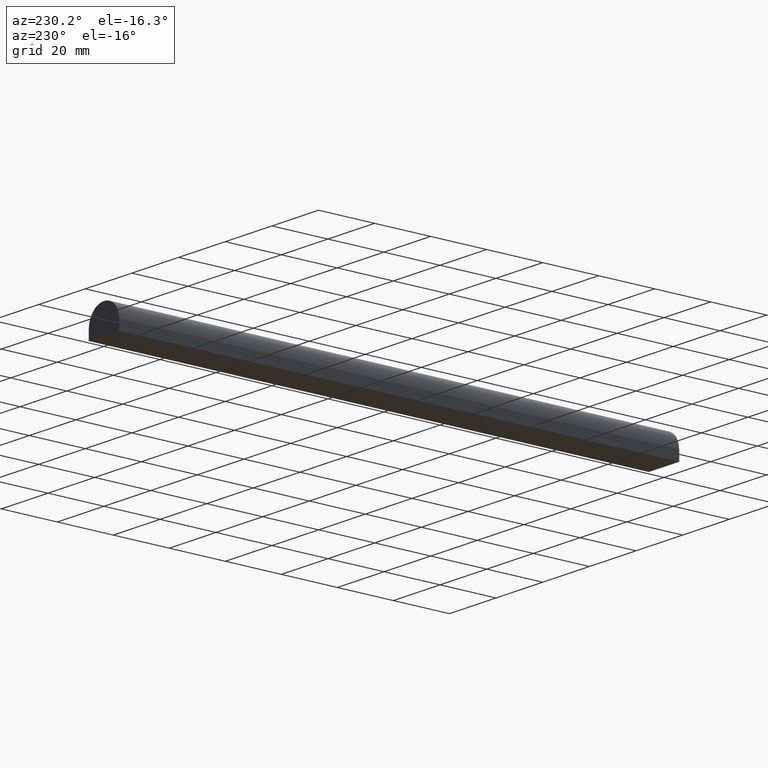
[diagram: clean part render]
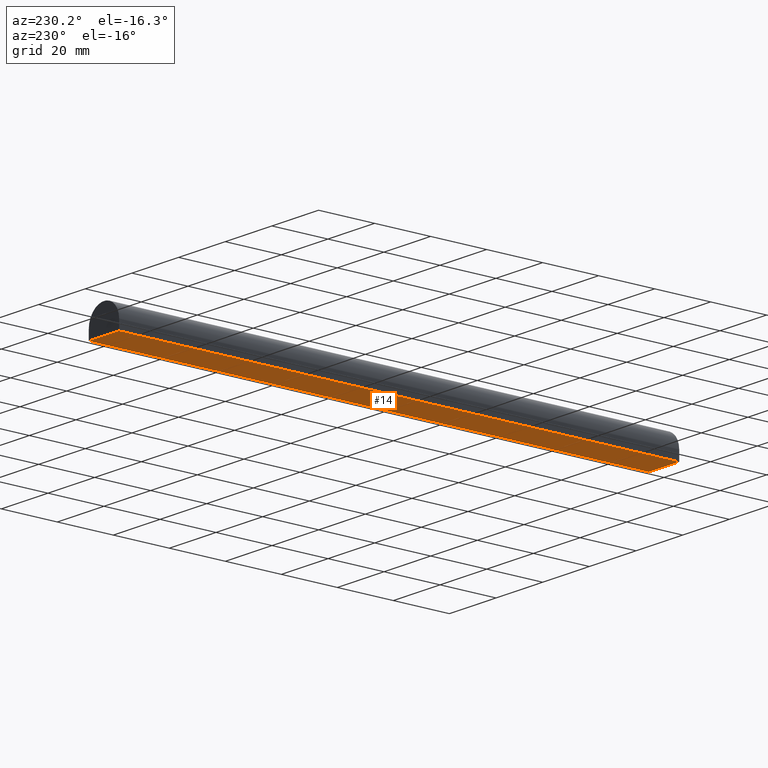
[diagram: same view with one face highlighted and labeled with its STEP entity id]
A machine part, auxiliary view. The second image highlights one B-rep face of the part: STEP entity #14.
In plain terms, the highlighted planar face has unit normal (0, 0, -1).
Its self-contained STEP definition (entity closure, byte-faithful):
#11 = VECTOR ( 'NONE', #16, 1000.000000000000000 ) ;
#14 = ADVANCED_FACE ( 'NONE', ( #109 ), #195, .T. ) ;
#16 = DIRECTION ( 'NONE',  ( 1.000000000000000000, -0.0000000000000000000, -0.0000000000000000000 ) ) ;
#18 = LINE ( 'NONE', #170, #143 ) ;
#33 = CARTESIAN_POINT ( 'NONE',  ( 6.500000000000000000, 200.0000000000000000, -5.000000000000000000 ) ) ;
#39 = EDGE_CURVE ( 'NONE', #129, #91, #90, .T. ) ;
#45 = CARTESIAN_POINT ( 'NONE',  ( -6.500000000000000000, 200.0000000000000000, -5.000000000000000000 ) ) ;
#48 = EDGE_CURVE ( 'NONE', #229, #180, #156, .T. ) ;
#59 = DIRECTION ( 'NONE',  ( 1.000000000000000000, -0.0000000000000000000, -0.0000000000000000000 ) ) ;
#83 = DIRECTION ( 'NONE',  ( 0.0000000000000000000, 0.0000000000000000000, -1.000000000000000000 ) ) ;
#84 = ORIENTED_EDGE ( 'NONE', *, *, #48, .T. ) ;
#86 = VECTOR ( 'NONE', #228, 1000.000000000000000 ) ;
#90 = LINE ( 'NONE', #96, #115 ) ;
#91 = VERTEX_POINT ( 'NONE', #192 ) ;
#96 = CARTESIAN_POINT ( 'NONE',  ( -6.500000000000000000, 1000.000000000000000, -5.000000000000000000 ) ) ;
#105 = CARTESIAN_POINT ( 'NONE',  ( 6.500000000000000000, 0.0000000000000000000, -5.000000000000000000 ) ) ;
#109 = FACE_OUTER_BOUND ( 'NONE', #124, .T. ) ;
#115 = VECTOR ( 'NONE', #191, 1000.000000000000000 ) ;
#116 = DIRECTION ( 'NONE',  ( -1.000000000000000000, 0.0000000000000000000, 0.0000000000000000000 ) ) ;
#117 = AXIS2_PLACEMENT_3D ( 'NONE', #179, #83, #116 ) ;
#122 = EDGE_CURVE ( 'NONE', #91, #180, #18, .T. ) ;
#124 = EDGE_LOOP ( 'NONE', ( #219, #188, #130, #84 ) ) ;
#129 = VERTEX_POINT ( 'NONE', #45 ) ;
#130 = ORIENTED_EDGE ( 'NONE', *, *, #161, .T. ) ;
#143 = VECTOR ( 'NONE', #59, 1000.000000000000000 ) ;
#156 = LINE ( 'NONE', #203, #86 ) ;
#161 = EDGE_CURVE ( 'NONE', #129, #229, #221, .T. ) ;
#170 = CARTESIAN_POINT ( 'NONE',  ( 0.0000000000000000000, 0.0000000000000000000, -5.000000000000000000 ) ) ;
#179 = CARTESIAN_POINT ( 'NONE',  ( -6.500000000000000000, 1000.000000000000000, -5.000000000000000000 ) ) ;
#180 = VERTEX_POINT ( 'NONE', #105 ) ;
#188 = ORIENTED_EDGE ( 'NONE', *, *, #39, .F. ) ;
#191 = DIRECTION ( 'NONE',  ( 0.0000000000000000000, -1.000000000000000000, 0.0000000000000000000 ) ) ;
#192 = CARTESIAN_POINT ( 'NONE',  ( -6.500000000000000000, 0.0000000000000000000, -5.000000000000000000 ) ) ;
#193 = CARTESIAN_POINT ( 'NONE',  ( 0.0000000000000000000, 200.0000000000000000, -5.000000000000000000 ) ) ;
#195 = PLANE ( 'NONE',  #117 ) ;
#203 = CARTESIAN_POINT ( 'NONE',  ( 6.500000000000000000, 1000.000000000000000, -5.000000000000000000 ) ) ;
#219 = ORIENTED_EDGE ( 'NONE', *, *, #122, .F. ) ;
#221 = LINE ( 'NONE', #193, #11 ) ;
#228 = DIRECTION ( 'NONE',  ( 0.0000000000000000000, -1.000000000000000000, 0.0000000000000000000 ) ) ;
#229 = VERTEX_POINT ( 'NONE', #33 ) ;